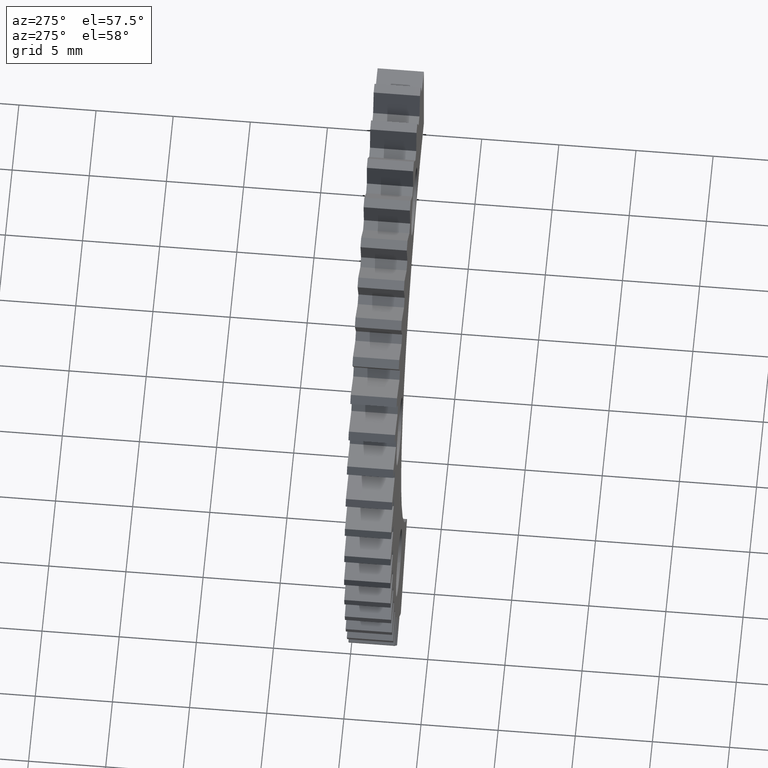
[diagram: clean part render]
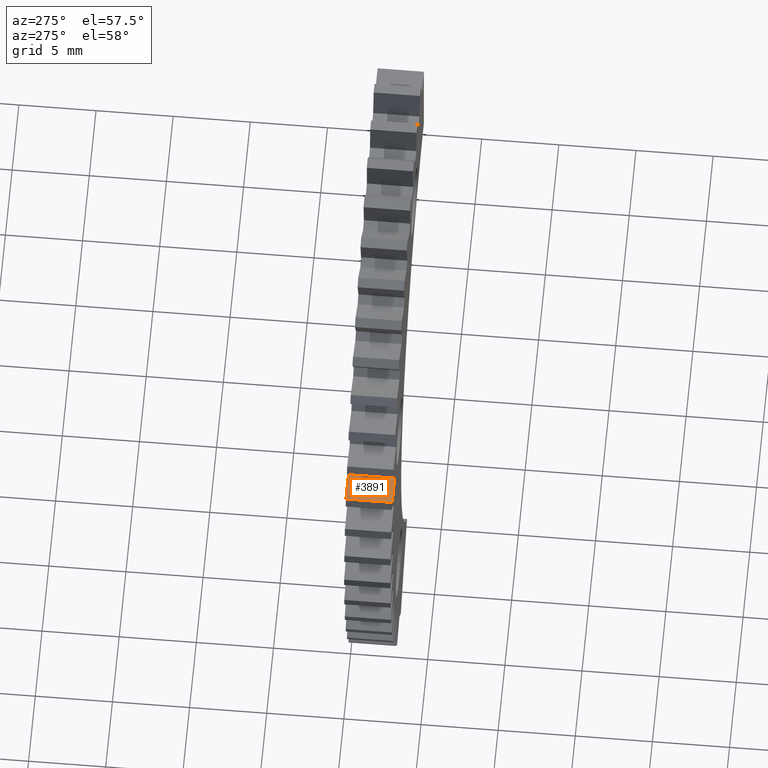
[diagram: same view with one face highlighted and labeled with its STEP entity id]
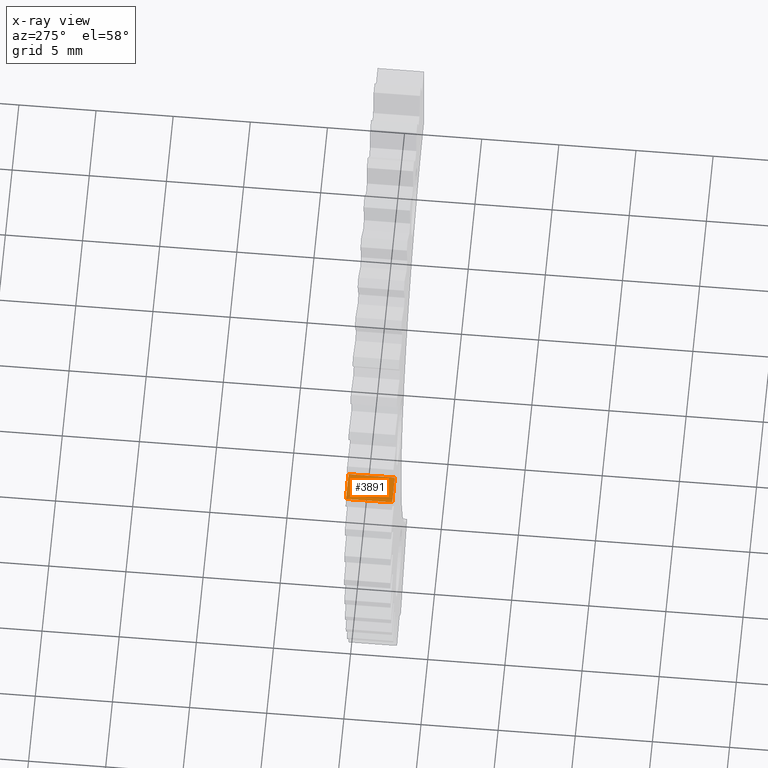
[diagram: x-ray of the same camera — body ghosted, the highlighted face saturated]
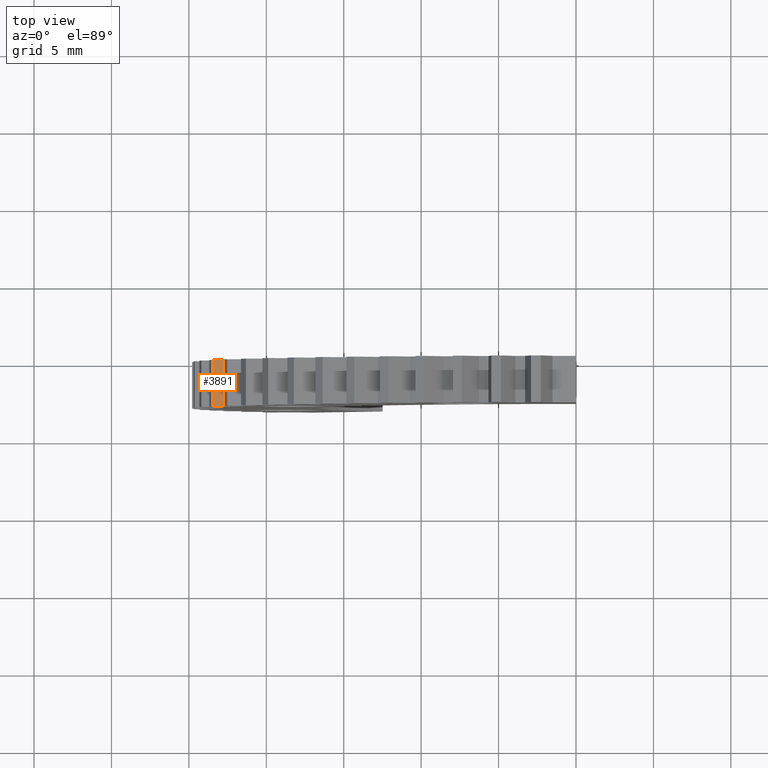
[diagram: same view with one face highlighted and labeled with its STEP entity id]
A machine part, auxiliary view. The second image highlights one B-rep face of the part: STEP entity #3891.
The next image is the same camera in x-ray: the body ghosted, the highlighted face saturated — about 0% of this face is hidden behind the body in this view.
A second angle (top view) of the same face is appended — the face is thin or edge-on in the first view.
In plain terms, the highlighted face is a freeform B-spline surface patch.
Its self-contained STEP definition (entity closure, byte-faithful):
#1508=CARTESIAN_POINT('',(-23.486952999999900,0.0,-11.837414000000100));
#1509=VERTEX_POINT('',#1508);
#1523=CARTESIAN_POINT('',(-21.583220909659051,0.0,-11.852384567677721));
#1524=VERTEX_POINT('',#1523);
#1525=CARTESIAN_POINT('',(-21.583220909659051,0.0,-11.852384567677721));
#1526=CARTESIAN_POINT('',(-23.486952999999900,0.0,-11.837414000000100));
#1527=QUASI_UNIFORM_CURVE('',1,(#1525,#1526),.UNSPECIFIED.,.F.,.U.);
#1528=EDGE_CURVE('',#1524,#1509,#1527,.T.);
#2594=CARTESIAN_POINT('',(-21.583220909659051,-3.0,-11.852384567677721));
#2595=VERTEX_POINT('',#2594);
#2609=CARTESIAN_POINT('',(-23.486952999999900,-3.0,-11.837414000000100));
#2610=VERTEX_POINT('',#2609);
#2611=CARTESIAN_POINT('',(-21.583220909659051,-3.0,-11.852384567677721));
#2612=CARTESIAN_POINT('',(-23.486952999999900,-3.0,-11.837414000000100));
#2613=QUASI_UNIFORM_CURVE('',1,(#2611,#2612),.UNSPECIFIED.,.F.,.U.);
#2614=EDGE_CURVE('',#2595,#2610,#2613,.T.);
#3868=CARTESIAN_POINT('',(-23.486952999999900,-3.0,-11.837414000000100));
#3869=CARTESIAN_POINT('',(-23.486952999999900,0.0,-11.837414000000100));
#3870=QUASI_UNIFORM_CURVE('',1,(#3868,#3869),.UNSPECIFIED.,.F.,.U.);
#3871=EDGE_CURVE('',#2610,#1509,#3870,.T.);
#3876=CARTESIAN_POINT('',(-21.488130060297959,-3.149849994185419,-11.853138047473580));
#3877=CARTESIAN_POINT('',(-23.582045151629259,-3.149849994185419,-11.836665942992610));
#3878=CARTESIAN_POINT('',(-21.488130060297959,0.149850074651688,-11.853138047473580));
#3879=CARTESIAN_POINT('',(-23.582045151629259,0.149850074651688,-11.836665942992610));
#3880=B_SPLINE_SURFACE_WITH_KNOTS('',1,1,((#3876,#3878),(#3877,#3879)),.UNSPECIFIED.,.F.,.F.,.U.,(2,2),(2,2),(0.0,2.093979880498146),(0.0,3.299700068837107),.UNSPECIFIED.);
#3881=ORIENTED_EDGE('',*,*,#1528,.T.);
#3882=ORIENTED_EDGE('',*,*,#3871,.F.);
#3883=ORIENTED_EDGE('',*,*,#2614,.F.);
#3884=CARTESIAN_POINT('',(-21.583220909659051,-3.0,-11.852384567677721));
#3885=CARTESIAN_POINT('',(-21.583220909659051,0.0,-11.852384567677721));
#3886=QUASI_UNIFORM_CURVE('',1,(#3884,#3885),.UNSPECIFIED.,.F.,.U.);
#3887=EDGE_CURVE('',#2595,#1524,#3886,.T.);
#3888=ORIENTED_EDGE('',*,*,#3887,.T.);
#3889=EDGE_LOOP('',(#3881,#3882,#3883,#3888));
#3890=FACE_OUTER_BOUND('',#3889,.T.);
#3891=ADVANCED_FACE('',(#3890),#3880,.F.);